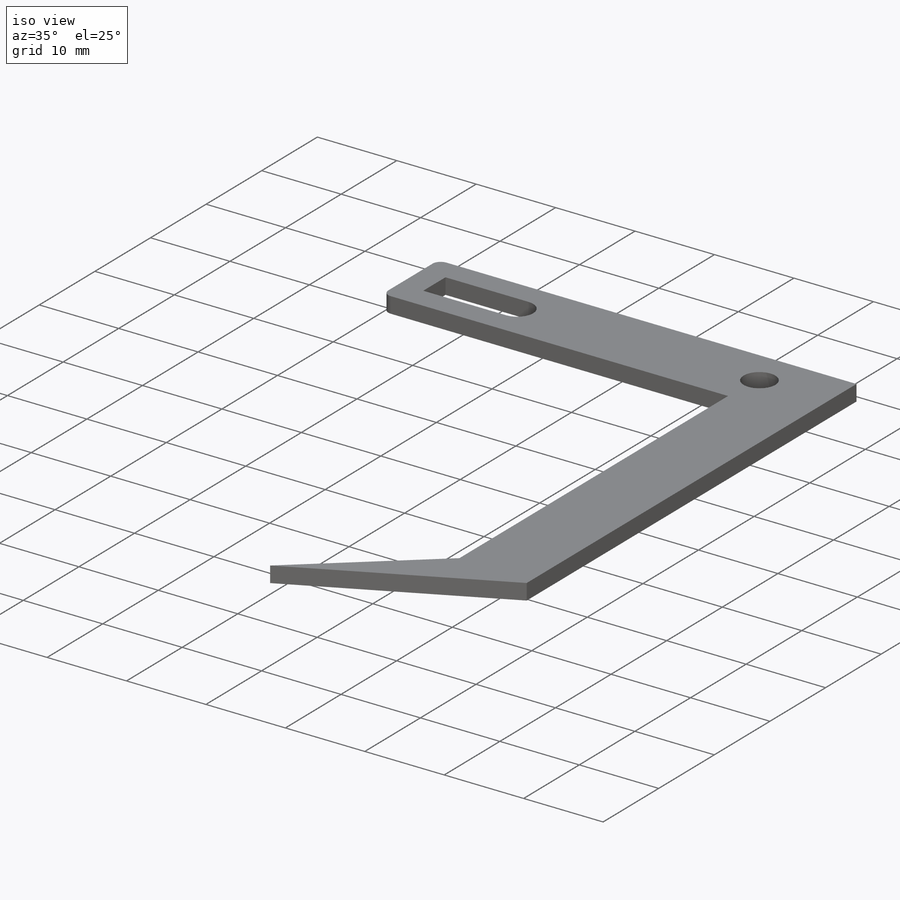
[diagram: iso view]
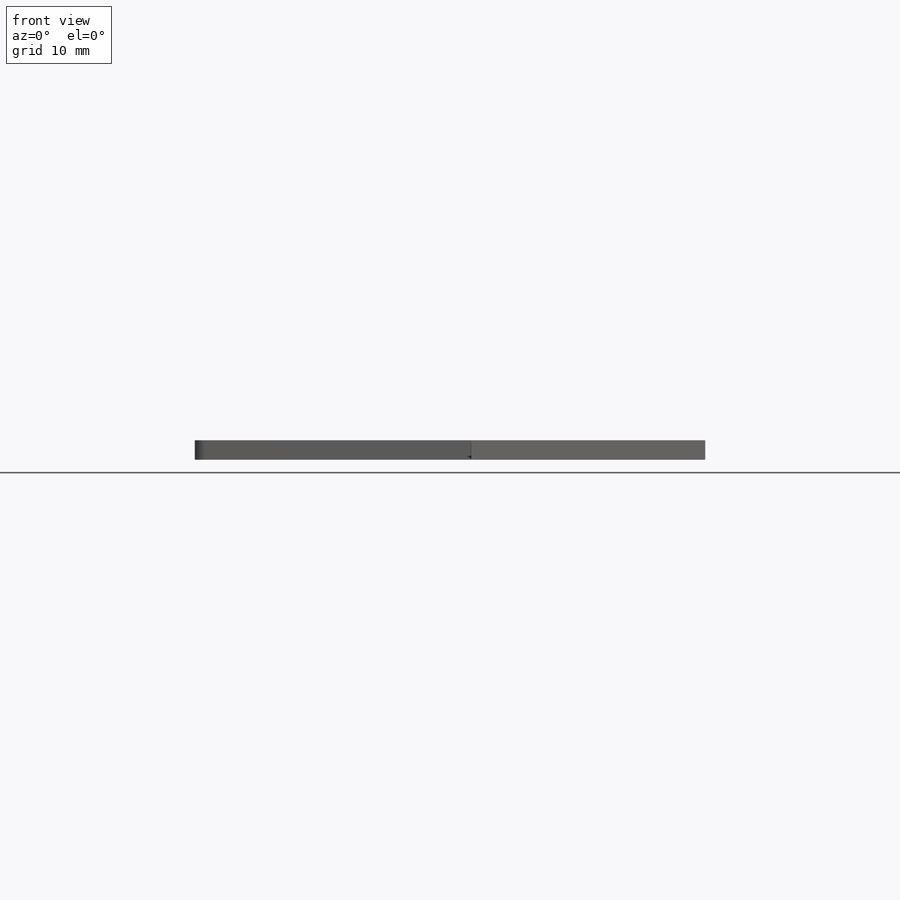
[diagram: front view]
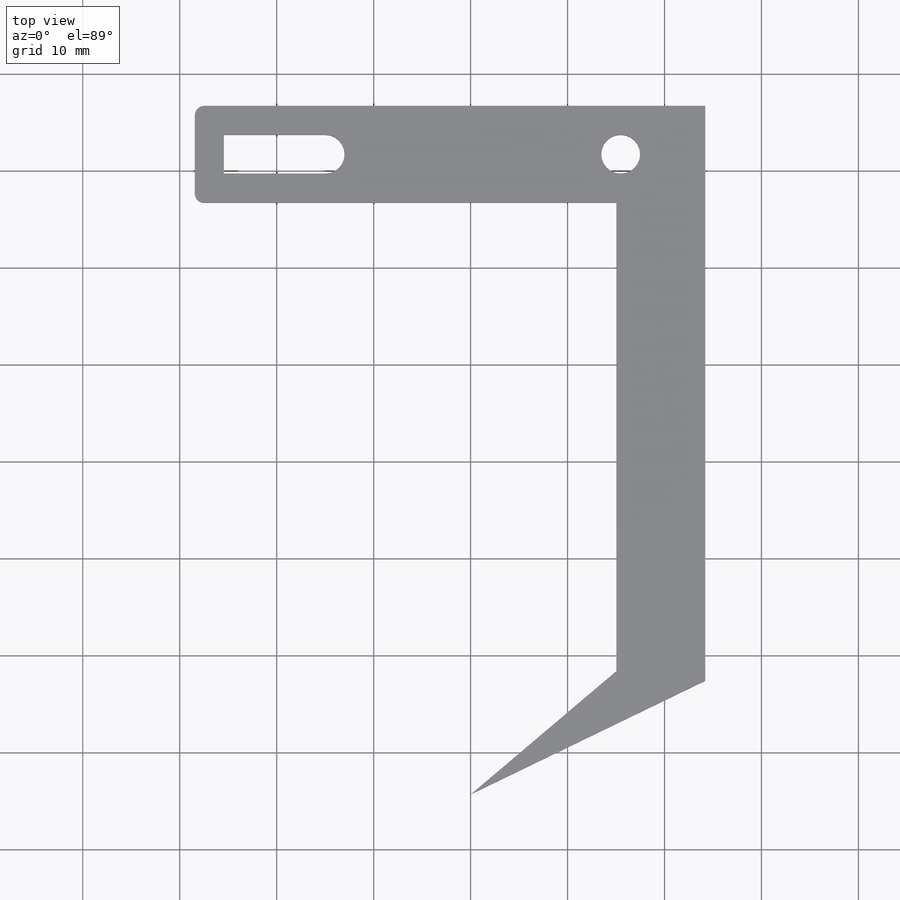
[diagram: top view]
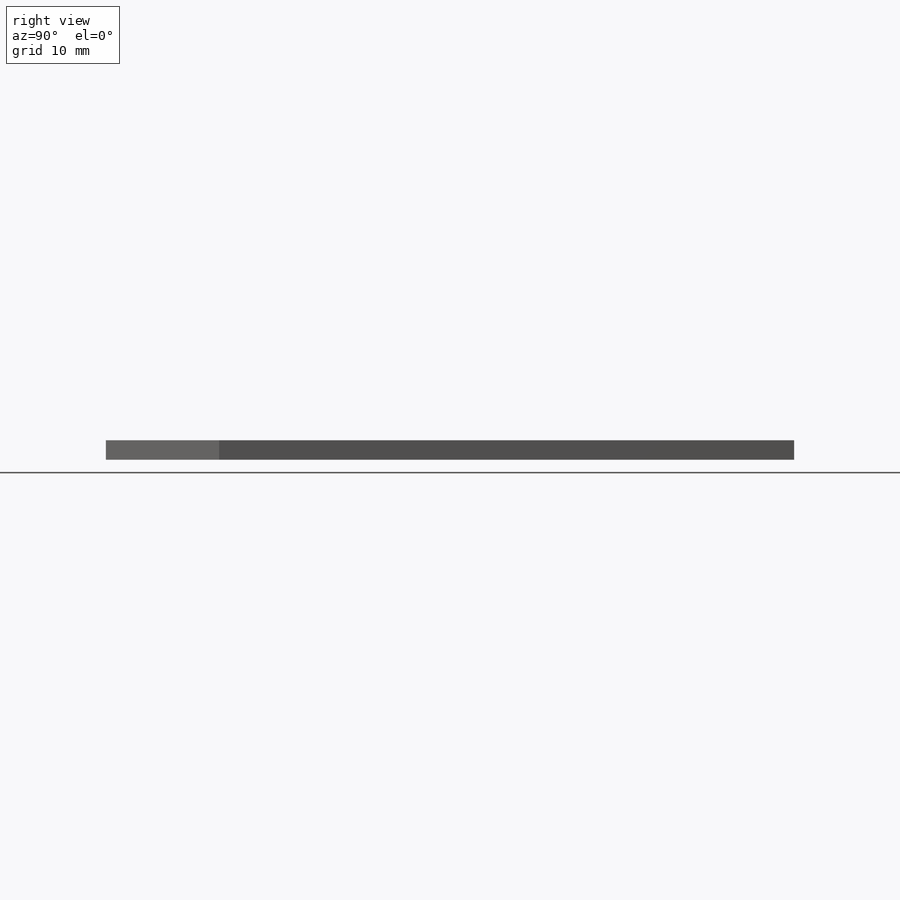
[diagram: right view]
SOLIDWORKS PART (.sldprt)
format: sldprt  version: not decoded by parser v0  size: 286,720 bytes
history: native  units: mm
features: sketch x8, cut_extrude x6, plane x2, material x1, extrude x1 (+13 scaffold rows collapsed)
feature tree (31):
  scaffold x13  (default folders/planes/origin — collapsed)
  material  "Material <not specified>"
  sketch  "Sketch1"  dims[c1.D4=10.0mm c1.D5=10.0mm c1.D6=10.0mm c1.D7=1.0mm c1.D8=~3.066491mm c1.D10=4.0mm c1.D13=10.0mm c2.D4=10.0mm c2.D2=10.0mm c2.D16=5.0mm c2.D14=5.0mm c2.D3=10.0mm c2.D1=10.0mm c3.D2=~22.191719mm c4.D2=120.0deg c4.D3=~16.58202mm c5.D3=120.0deg c5.D8=15.0mm c5.D9=5.0mm c5.D11=30.48mm c6.D3=50.0mm c6.D12=35.0mm c6.D4=25.0mm c6.D13=~60.250056mm c7.D13=15.0deg c7.D14=~9.314602mm c7.D15=10.0mm c8.D14=10.0mm c8.D2=24.52mm c8.D3=~66.066109mm c9.D2=10.0mm c9.D4=24.52mm c9.D5=40.48mm c9.D6=40.0mm c9.D9=80.0mm c10.D2=50.0mm]
  extrude  "Boss-Extrude2"  Depth=2mm
  sketch  "Sketch2"  dims[D1=~23.575533mm]
  plane  "Plane1"
  sketch  "Sketch6"
  cut_extrude  "Cut-Extrude2"  Depth=9mm
  sketch  "Sketch8"  dims[D1=2.0mm]
  cut_extrude  "Cut-Extrude3"  Depth=9mm
  sketch  "Sketch9"  dims[D1=10.0mm]
  cut_extrude  "Cut-Extrude4"  Depth=10mm
  plane  "Plane2"
  sketch  "Sketch11"  dims[D1=1.0mm]
  cut_extrude  "Cut-Extrude5"  Depth=10mm
  sketch  "Sketch12"  dims[D1=3.0mm]
  cut_extrude  "Cut-Extrude6"  Depth=10mm
  sketch  "Sketch13"  dims[D1=1.0mm]
  cut_extrude  "Cut-Extrude8"  Depth=20mm
decode coverage: 14 of 15 modeling features carry decoded parameters
note: ~ marks probable driven/reference dimensions
note: suppression state not decoded; provenance and decode notes live in map.json
